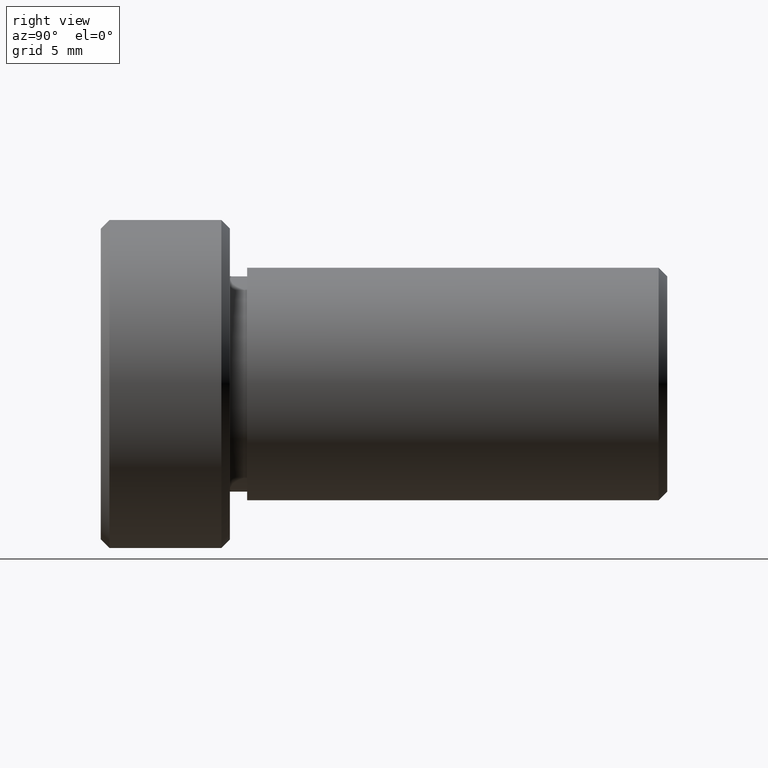
[diagram: clean part render]
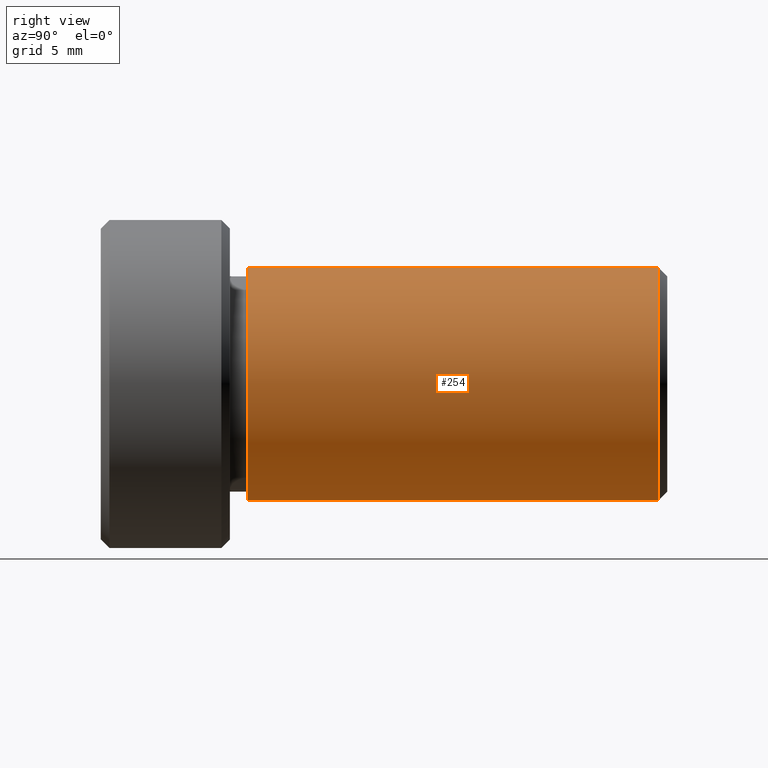
[diagram: same view with one face highlighted and labeled with its STEP entity id]
A machine part, right view. The second image highlights one B-rep face of the part: STEP entity #254.
In plain terms, the highlighted cylindrical surface (partial cylindrical patch) has radius 6.75 mm, axis along (-0, 1, -0).
Its self-contained STEP definition (entity closure, byte-faithful):
#28 = CARTESIAN_POINT ( 'NONE',  ( 8.266365894244637300E-016, 44.59859774529311900, -6.750000000000002700 ) ) ;
#59 = CARTESIAN_POINT ( 'NONE',  ( 0.0000000000000000000, 2.642854174566895900, 6.750000000000004400 ) ) ;
#91 = VECTOR ( 'NONE', #571, 1000.000000000000000 ) ;
#95 = DIRECTION ( 'NONE',  ( -0.0000000000000000000, 1.000000000000000000, -0.0000000000000000000 ) ) ;
#105 = VERTEX_POINT ( 'NONE', #646 ) ;
#167 = VECTOR ( 'NONE', #512, 1000.000000000000000 ) ;
#198 = CIRCLE ( 'NONE', #218, 6.750000000000000900 ) ;
#213 = ORIENTED_EDGE ( 'NONE', *, *, #747, .T. ) ;
#218 = AXIS2_PLACEMENT_3D ( 'NONE', #311, #95, #790 ) ;
#230 = AXIS2_PLACEMENT_3D ( 'NONE', #436, #375, #425 ) ;
#240 = EDGE_CURVE ( 'NONE', #566, #704, #366, .T. ) ;
#251 = DIRECTION ( 'NONE',  ( 0.0000000000000000000, 0.0000000000000000000, 1.000000000000000000 ) ) ;
#254 = ADVANCED_FACE ( 'NONE', ( #765 ), #538, .T. ) ;
#258 = LINE ( 'NONE', #28, #91 ) ;
#311 = CARTESIAN_POINT ( 'NONE',  ( 0.0000000000000000000, 26.54285417456689400, 0.0000000000000000000 ) ) ;
#366 = LINE ( 'NONE', #866, #167 ) ;
#375 = DIRECTION ( 'NONE',  ( -0.0000000000000000000, 1.000000000000000000, -0.0000000000000000000 ) ) ;
#425 = DIRECTION ( 'NONE',  ( 0.0000000000000000000, 0.0000000000000000000, 1.000000000000000000 ) ) ;
#432 = VERTEX_POINT ( 'NONE', #880 ) ;
#436 = CARTESIAN_POINT ( 'NONE',  ( 0.0000000000000000000, 2.642854174566895900, 0.0000000000000000000 ) ) ;
#458 = EDGE_LOOP ( 'NONE', ( #213, #484, #642, #764 ) ) ;
#484 = ORIENTED_EDGE ( 'NONE', *, *, #841, .T. ) ;
#499 = AXIS2_PLACEMENT_3D ( 'NONE', #586, #580, #251 ) ;
#512 = DIRECTION ( 'NONE',  ( -0.0000000000000000000, 1.000000000000000000, -0.0000000000000000000 ) ) ;
#538 = CYLINDRICAL_SURFACE ( 'NONE', #499, 6.750000000000002700 ) ;
#566 = VERTEX_POINT ( 'NONE', #59 ) ;
#571 = DIRECTION ( 'NONE',  ( -0.0000000000000000000, 1.000000000000000000, -0.0000000000000000000 ) ) ;
#580 = DIRECTION ( 'NONE',  ( -0.0000000000000000000, 1.000000000000000000, -0.0000000000000000000 ) ) ;
#586 = CARTESIAN_POINT ( 'NONE',  ( 0.0000000000000000000, 44.59859774529311900, 0.0000000000000000000 ) ) ;
#638 = CIRCLE ( 'NONE', #230, 6.750000000000004400 ) ;
#642 = ORIENTED_EDGE ( 'NONE', *, *, #734, .F. ) ;
#646 = CARTESIAN_POINT ( 'NONE',  ( 8.266365894244639300E-016, 2.642854174566895900, -6.750000000000004400 ) ) ;
#687 = CARTESIAN_POINT ( 'NONE',  ( 0.0000000000000000000, 26.54285417456689400, 6.750000000000000900 ) ) ;
#704 = VERTEX_POINT ( 'NONE', #687 ) ;
#734 = EDGE_CURVE ( 'NONE', #704, #432, #198, .T. ) ;
#747 = EDGE_CURVE ( 'NONE', #566, #105, #638, .T. ) ;
#764 = ORIENTED_EDGE ( 'NONE', *, *, #240, .F. ) ;
#765 = FACE_OUTER_BOUND ( 'NONE', #458, .T. ) ;
#790 = DIRECTION ( 'NONE',  ( 0.0000000000000000000, 0.0000000000000000000, 1.000000000000000000 ) ) ;
#841 = EDGE_CURVE ( 'NONE', #105, #432, #258, .T. ) ;
#866 = CARTESIAN_POINT ( 'NONE',  ( 0.0000000000000000000, 44.59859774529311900, 6.750000000000002700 ) ) ;
#880 = CARTESIAN_POINT ( 'NONE',  ( 8.266365894244636300E-016, 26.54285417456689400, -6.750000000000000900 ) ) ;